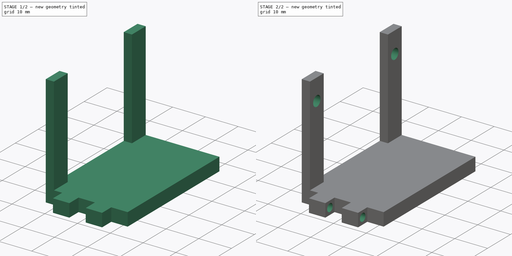
[diagram: build sequence overview — one tinted view per stage of 2, left to right]
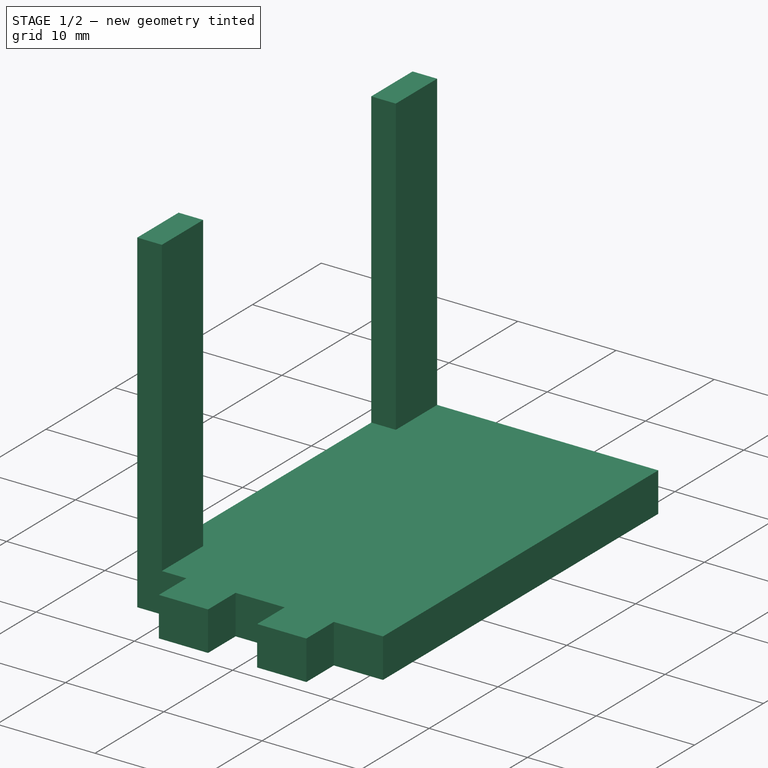
[diagram: stage 1 of 2 — iso view after this stage's code; geometry added in this stage tinted green]
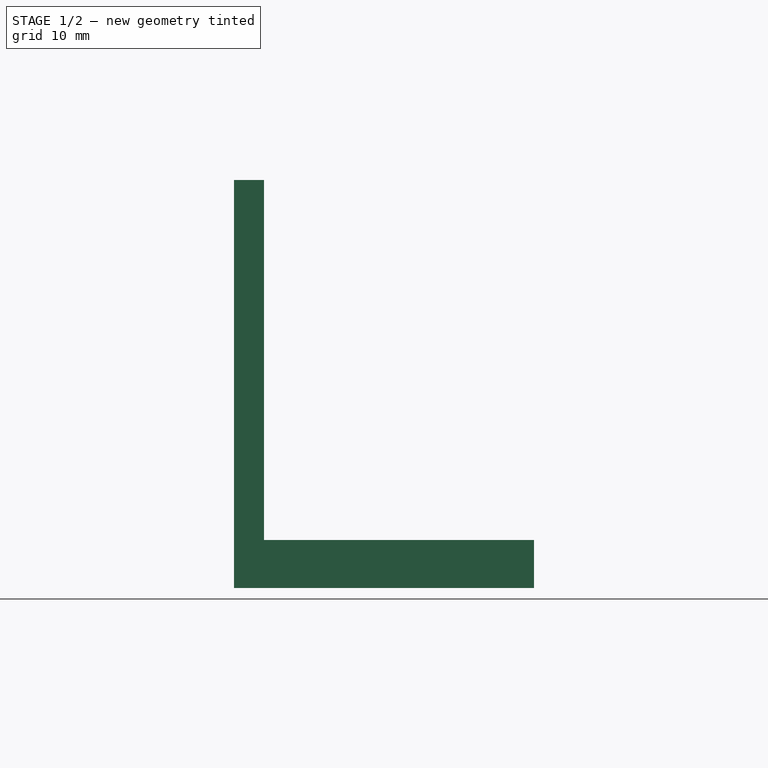
[diagram: stage 1 of 2 — front view after this stage's code; geometry added in this stage tinted green]
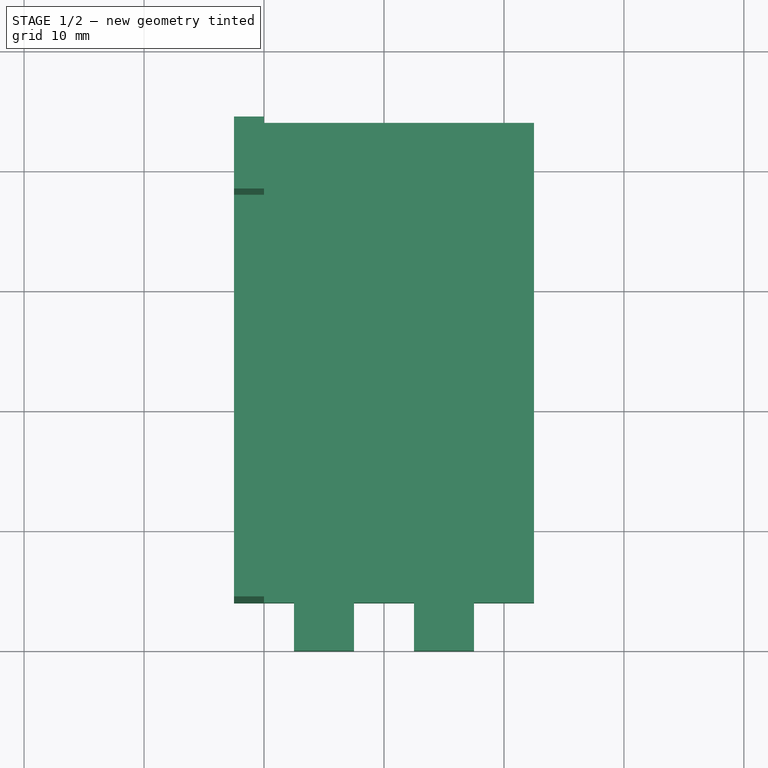
[diagram: stage 1 of 2 — top view after this stage's code; geometry added in this stage tinted green]
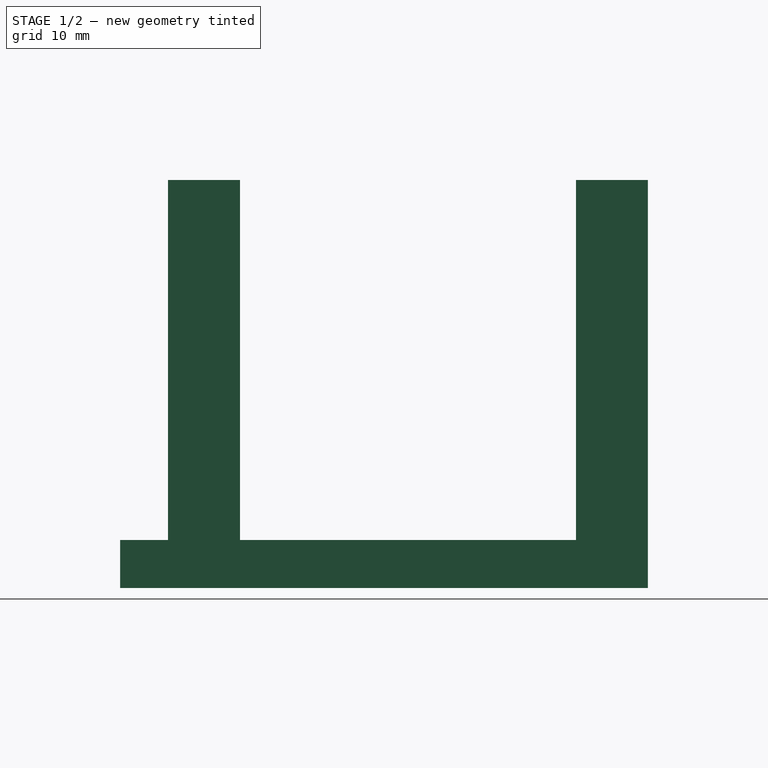
[diagram: stage 1 of 2 — right view after this stage's code; geometry added in this stage tinted green]
FCSTD DOCUMENT  (FreeCAD 0.16R6348 (Git))
Label: Mountpoint
License: All rights reserved
LicenseURL: http://en.wikipedia.org/wiki/All_rights_reserved
objects: Sketcher::SketchObject×3, PartDesign::Pad×2, PartDesign::Pocket×1
note: 9 computed .brp shape members not serialized (recipe doc carries the construction recipe); baked Part::Feature solids carry a one-line shape summary decoded from their .brp

FEATURE [Sketcher::SketchObject] Sketch
  sketch-geometry (12):
    g0: LineSegment StartX=-7.5 StartY=-20.0008 StartZ=0 EndX=-2.5 EndY=-20.0008 EndZ=0
    g1: LineSegment StartX=-2.5 StartY=-20.0008 StartZ=0 EndX=-2.5 EndY=-16.0008 EndZ=0
    g2: LineSegment StartX=-2.5 StartY=-16.0008 StartZ=0 EndX=2.5 EndY=-16.0008 EndZ=0
    g3: LineSegment StartX=2.5 StartY=-16.0008 StartZ=0 EndX=2.5 EndY=-20.0008 EndZ=0
    g4: LineSegment StartX=2.5 StartY=-20.0008 StartZ=0 EndX=7.5 EndY=-20.0008 EndZ=0
    g5: LineSegment StartX=7.5 StartY=-20.0008 StartZ=0 EndX=7.5 EndY=-16.0008 EndZ=0
    g6: LineSegment StartX=7.5 StartY=-16.0008 StartZ=0 EndX=12.5 EndY=-16.0008 EndZ=0
    g7: LineSegment StartX=-7.5 StartY=-20.0008 StartZ=0 EndX=-7.5 EndY=-16.0008 EndZ=0
    g8: LineSegment StartX=-7.5 StartY=-16.0008 StartZ=0 EndX=-12.5 EndY=-16.0008 EndZ=0
    g9: LineSegment StartX=-12.5 StartY=-16.0008 StartZ=0 EndX=-12.5 EndY=23.9992 EndZ=0
    g10: LineSegment StartX=-12.5 StartY=23.9992 StartZ=0 EndX=12.5 EndY=23.9992 EndZ=0
    g11: LineSegment StartX=12.5 StartY=23.9992 StartZ=0 EndX=12.5 EndY=-16.0008 EndZ=0
  constraints (35):
    c: Horizontal(g0)
    c: Coincident(g0,g1)
    c: Vertical(g1)
    c: Coincident(g1,g2)
    c: Horizontal(g2)
    c: Coincident(g2,g3)
    c: Vertical(g3)
    c: Coincident(g3,g4)
    c: Horizontal(g4)
    c: Coincident(g4,g5)
    c: Vertical(g5)
    c: Coincident(g5,g6)
    c: Horizontal(g6)
    c: Coincident(g0,g7)
    c: Vertical(g7)
    c: Coincident(g7,g8)
    c: Horizontal(g8)
    c: Equal(g0,g4)
    c: Equal(g7,g1)
    c: Equal(g1,g3)
    c: Equal(g3,g5)
    c: Equal(g8,g2)
    c: Equal(g2,g6)
    c: Distance(g5) = 4
    c: Equal(g0,g8)
    c: DistanceX(g8,g6) = 25
    c: Symmetric(g8,g6,g-2)
    c: Coincident(g8,g9)
    c: Vertical(g9)
    c: Coincident(g9,g10)
    c: Horizontal(g10)
    c: Coincident(g10,g11)
    c: Coincident(g11,g6)
    c: Vertical(g11)
    c: Distance(g9) = 40
FEATURE [PartDesign::Pad] Pad
  Length = 4
  Length2 = 100
  Sketch = -> Sketch
  Type = 0
FEATURE [Sketcher::SketchObject] Sketch001
  ExternalGeometry = -> [Pad]
  Placement = pos=(0,0,4) rot=(0,0,1;0rad)
  Support = -> Pad [Face14]
  sketch-geometry (8):
    g0: LineSegment StartX=-12.5 StartY=-16.0008 StartZ=0 EndX=-10 EndY=-16.0008 EndZ=0
    g1: LineSegment StartX=-10 StartY=-16.0008 StartZ=0 EndX=-10 EndY=-10.0008 EndZ=0
    g2: LineSegment StartX=-10 StartY=-10.0008 StartZ=0 EndX=-12.5 EndY=-10.0008 EndZ=0
    g3: LineSegment StartX=-12.5 StartY=-10.0008 StartZ=0 EndX=-12.5 EndY=-16.0008 EndZ=0
    g4: LineSegment StartX=-12.5 StartY=23.9992 StartZ=0 EndX=-10 EndY=23.9992 EndZ=0
    g5: LineSegment StartX=-10 StartY=23.9992 StartZ=0 EndX=-10 EndY=17.9992 EndZ=0
    g6: LineSegment StartX=-10 StartY=17.9992 StartZ=0 EndX=-12.5 EndY=17.9992 EndZ=0
    g7: LineSegment StartX=-12.5 StartY=17.9992 StartZ=0 EndX=-12.5 EndY=23.9992 EndZ=0
  constraints (22):
    c: Coincident(g0,g1)
    c: Coincident(g1,g2)
    c: Coincident(g2,g3)
    c: Coincident(g3,g0)
    c: Horizontal(g0)
    c: Horizontal(g2)
    c: Vertical(g1)
    c: Vertical(g3)
    c: Distance(g0) = 2.5
    c: Coincident(g-3,g0)
    c: Distance(g3) = 6
    c: Coincident(g4,g5)
    c: Coincident(g5,g6)
    c: Coincident(g6,g7)
    c: Coincident(g7,g4)
    c: Horizontal(g4)
    c: Horizontal(g6)
    c: Vertical(g5)
    c: Vertical(g7)
    c: Equal(g2,g6)
    c: Equal(g7,g1)
    c: Coincident(g4,g-4)
FEATURE [PartDesign::Pad] Pad001
  Length = 30
  Length2 = 100
  Sketch = -> Sketch001
  Type = 0
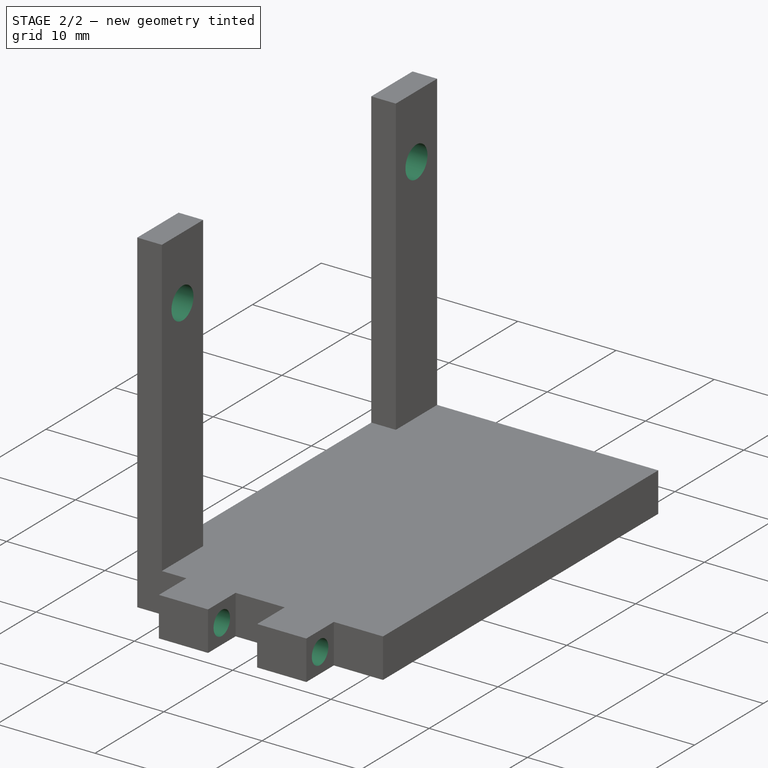
[diagram: stage 2 of 2 — iso view after this stage's code; geometry added in this stage tinted green]
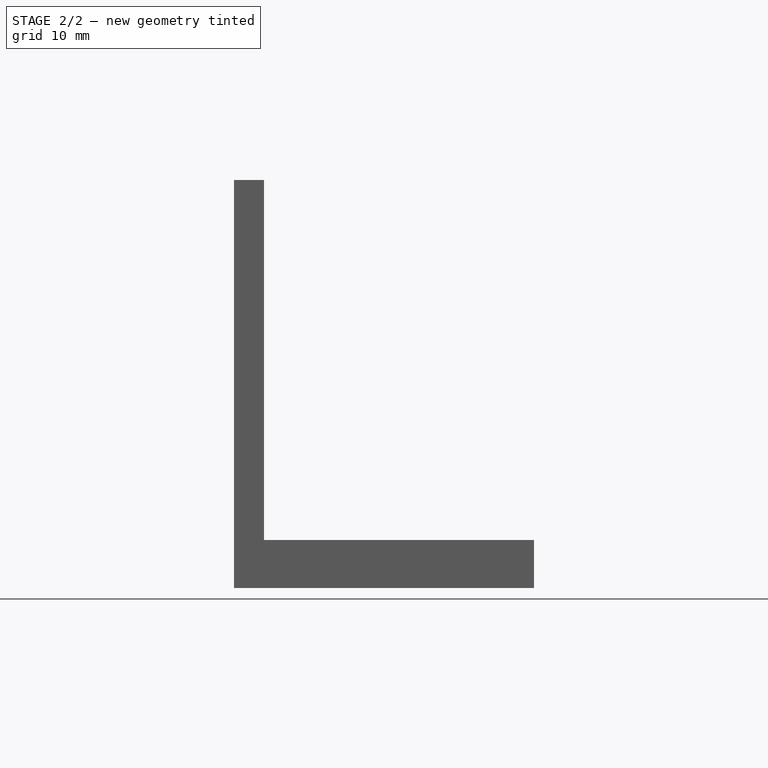
[diagram: stage 2 of 2 — front view after this stage's code; geometry added in this stage tinted green]
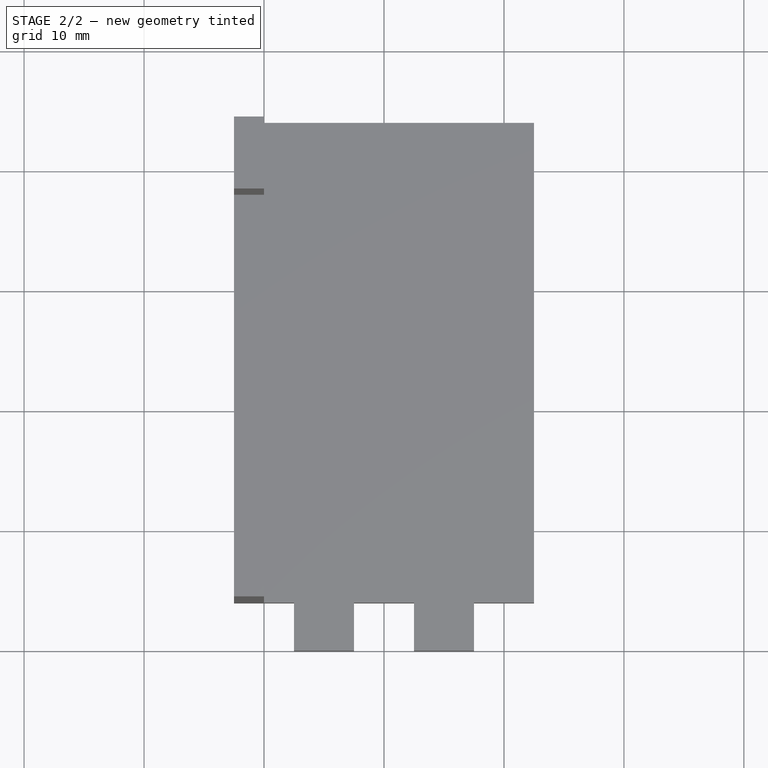
[diagram: stage 2 of 2 — top view after this stage's code; geometry added in this stage tinted green]
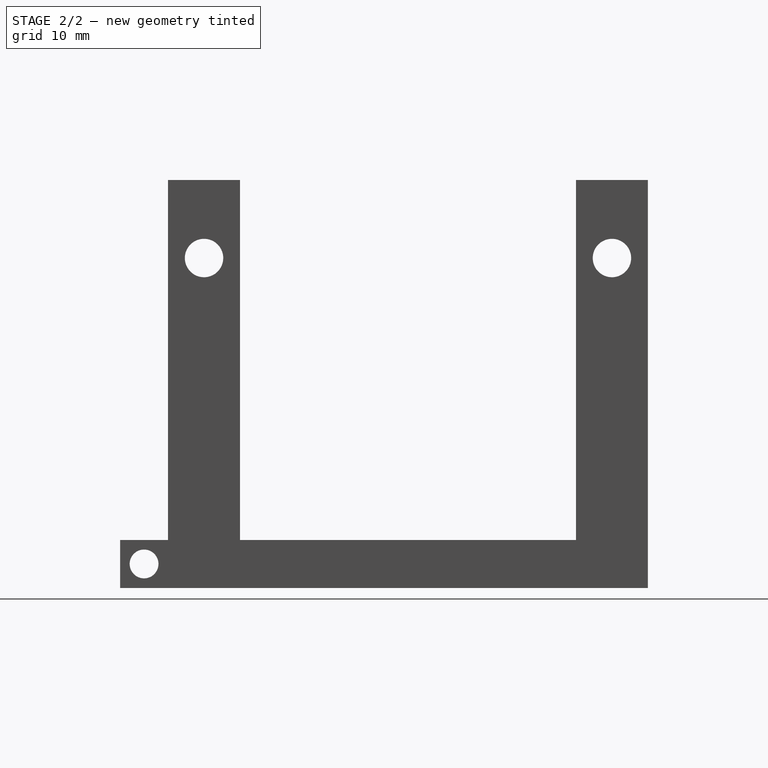
[diagram: stage 2 of 2 — right view after this stage's code; geometry added in this stage tinted green]
FEATURE [Sketcher::SketchObject] Sketch002
  ExternalGeometry = -> [Pad001]
  Placement = pos=(-12.5,0,0) rot=(0.57735,-0.57735,-0.57735;2.0944rad)
  Support = -> Pad001 [Face14]
  sketch-geometry (3):
    g0: Circle CenterX=18.0008 CenterY=2 CenterZ=0 NormalX=0 NormalY=0 NormalZ=1 Radius=1.2
    g1: Circle CenterX=13.0008 CenterY=27.5 CenterZ=0 NormalX=0 NormalY=0 NormalZ=1 Radius=1.6
    g2: Circle CenterX=-20.9992 CenterY=27.5 CenterZ=0 NormalX=0 NormalY=0 NormalZ=1 Radius=1.6
  constraints (9):
    c: Radius(g0) = 1.2
    c: DistanceY(g-4,g0) = -2
    c: DistanceX(g-4,g0) = -2
    c: Radius(g1) = 1.6
    c: DistanceX(g-5,g1) = 3
    c: DistanceY(g1,g-5) = 6.5
    c: Radius(g2) = 1.6
    c: DistanceX(g2,g-6) = -3
    c: DistanceY(g2,g-6) = 6.5
FEATURE [PartDesign::Pocket] Pocket
  Length = 5
  Sketch = -> Sketch002
  Type = 1
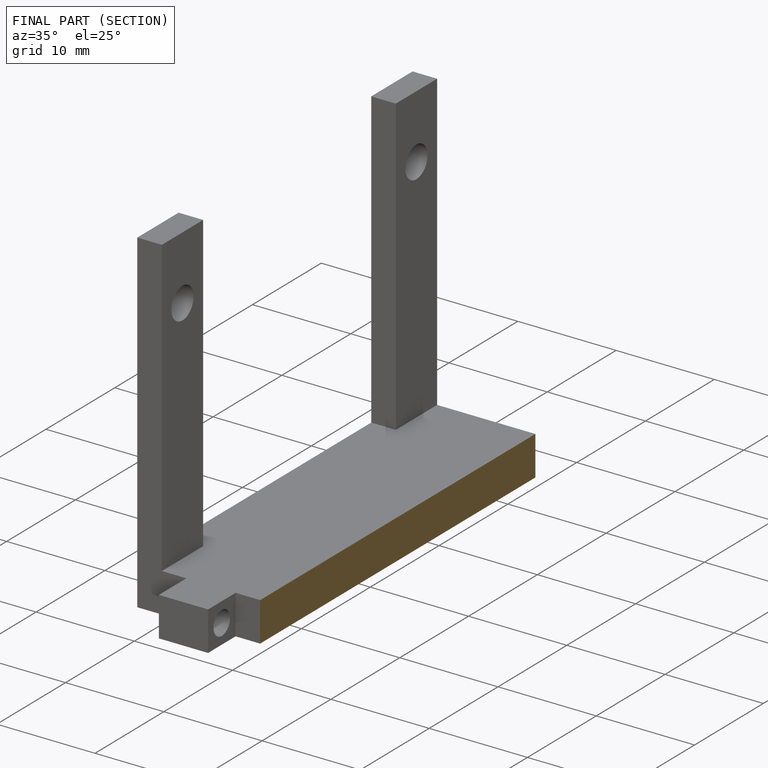
[diagram: finished part — half-section view (interior)]
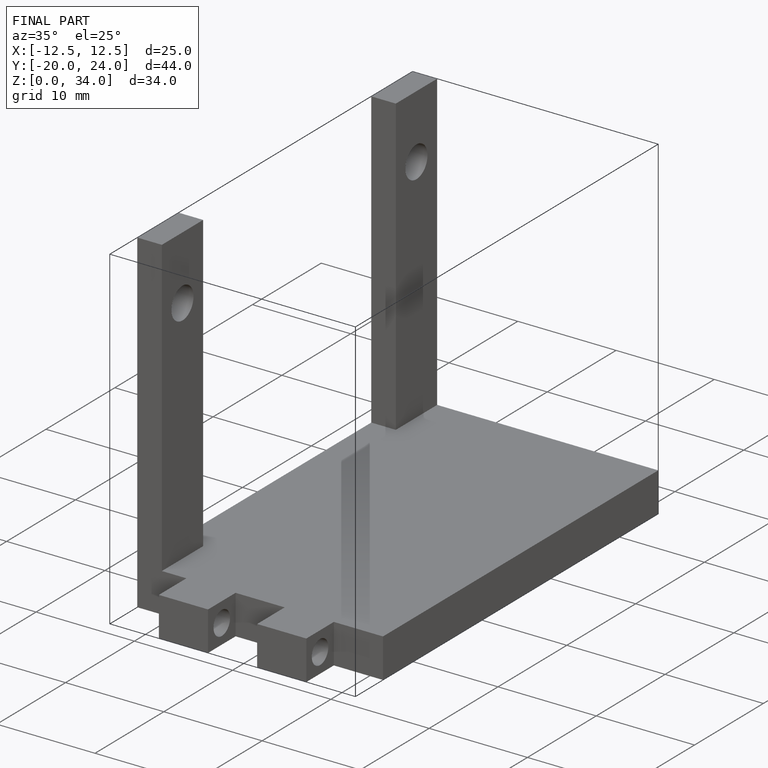
[diagram: finished part — iso view with bounding-box wireframe]
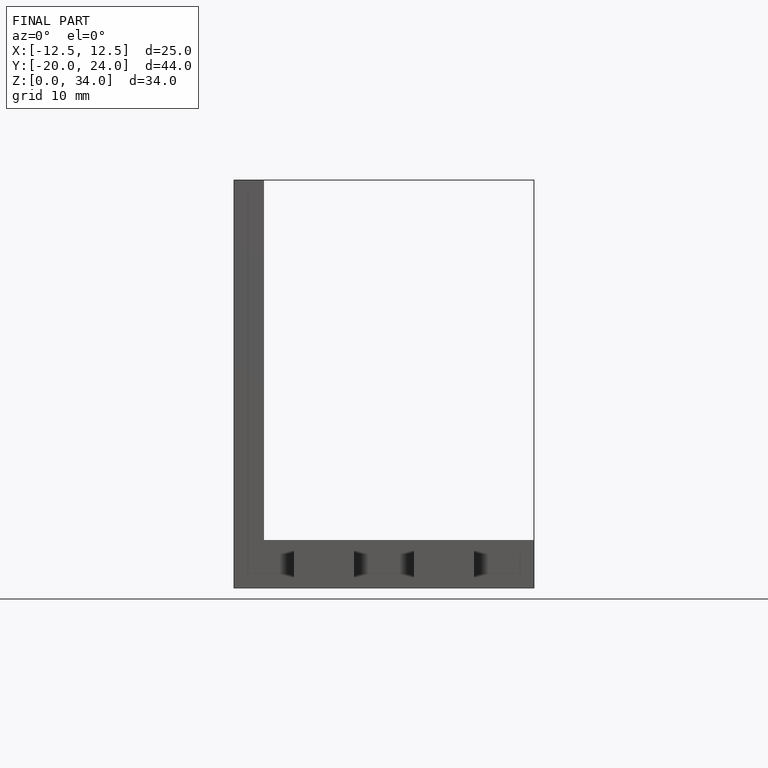
[diagram: finished part — front view with bounding-box wireframe]
